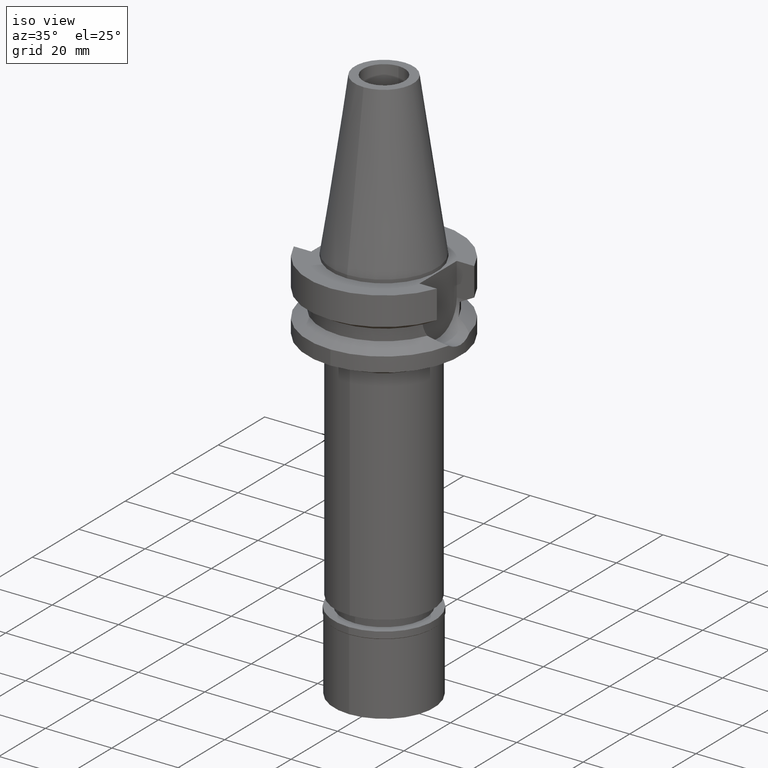
[diagram: clean part render]
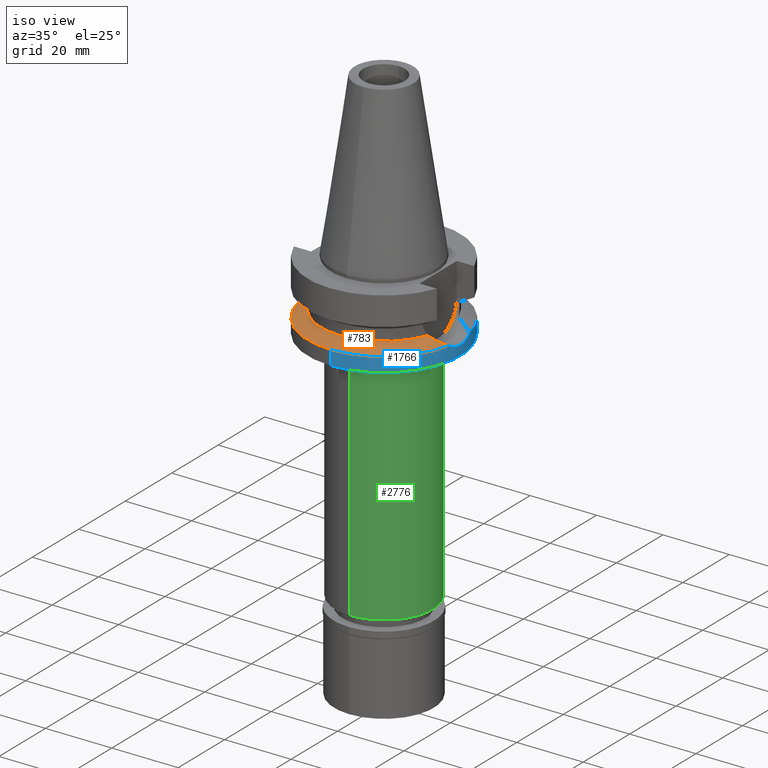
[diagram: same view with three faces highlighted in distinct colors, each labeled with its STEP entity id]
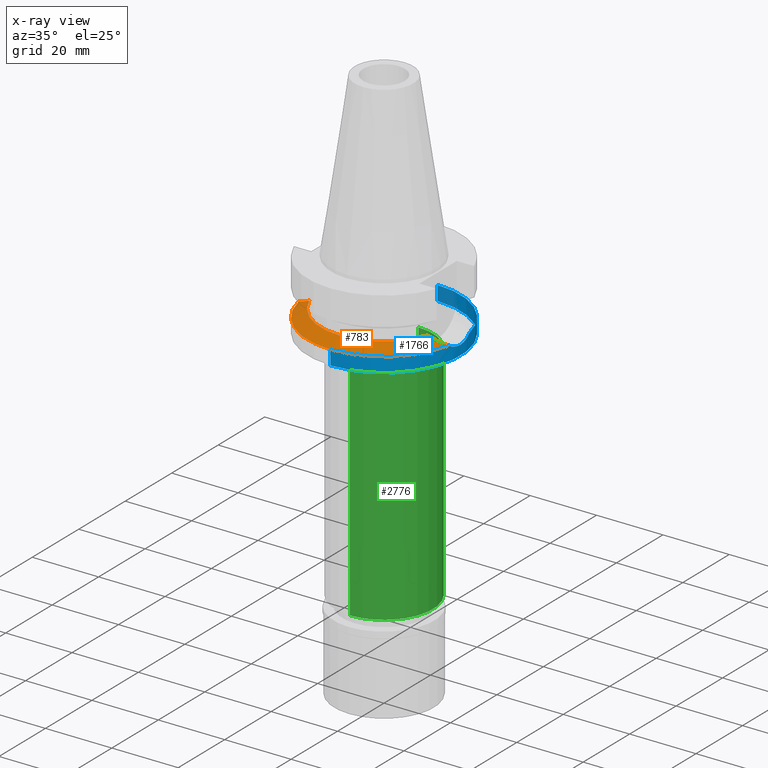
[diagram: x-ray of the same camera — body ghosted, the three highlighted faces saturated]
A machine part, iso view with three faces highlighted in distinct colors.
The next image is the same camera in x-ray (body ghosted, the three faces saturated) — at least one of them is partly hidden behind the body in this view.
Their STEP definitions:

[orange] entity #783 — the highlighted conical surface has half-angle 60 deg.
#8 = CARTESIAN_POINT ( 'NONE',  ( 17.75736593456000278, -6.758398853743999624, -15.32339055352999857 ) ) ;
#158 = CARTESIAN_POINT ( 'NONE',  ( 0.0000000000000000000, 1.022848384030000006E-14, -15.32339055352999857 ) ) ;
#184 = AXIS2_PLACEMENT_3D ( 'NONE', #1112, #1359, #433 ) ;
#203 = DIRECTION ( 'NONE',  ( 0.0000000000000000000, 0.0000000000000000000, 1.000000000000000000 ) ) ;
#227 = CARTESIAN_POINT ( 'NONE',  ( 22.55786346208000026, -4.488072640470000430, -17.63279163029000074 ) ) ;
#250 = DIRECTION ( 'NONE',  ( 0.9807766722643714852, -0.1951335930638943839, 0.0000000000000000000 ) ) ;
#285 = CARTESIAN_POINT ( 'NONE',  ( 0.0000000000000000000, 1.022848384030000006E-14, -17.63279163029000074 ) ) ;
#329 = ORIENTED_EDGE ( 'NONE', *, *, #1363, .F. ) ;
#402 = FACE_OUTER_BOUND ( 'NONE', #2091, .T. ) ;
#422 = CARTESIAN_POINT ( 'NONE',  ( 22.55786346208000026, -4.488072640470000430, -17.63279163029000074 ) ) ;
#424 = AXIS2_PLACEMENT_3D ( 'NONE', #158, #203, #1562 ) ;
#433 = DIRECTION ( 'NONE',  ( 0.0000000000000000000, -1.000000000000000000, 0.0000000000000000000 ) ) ;
#440 = EDGE_CURVE ( 'NONE', #1709, #2554, #2484, .T. ) ;
#581 = ORIENTED_EDGE ( 'NONE', *, *, #440, .F. ) ;
#590 = VERTEX_POINT ( 'NONE', #2569 ) ;
#623 = CARTESIAN_POINT ( 'NONE',  ( -22.55786346208000026, -4.488072640470000430, -17.63279163029000074 ) ) ;
#654 = AXIS2_PLACEMENT_3D ( 'NONE', #2665, #2491, #2245 ) ;
#661 = CONICAL_SURFACE ( 'NONE', #184, 21.00000000000000000, 1.047197551196400456 ) ;
#667 = CARTESIAN_POINT ( 'NONE',  ( -17.75736593456000278, -6.758398853743999624, -15.32339055352999857 ) ) ;
#687 = CARTESIAN_POINT ( 'NONE',  ( 19.88838796747590720, -5.976666637444247421, -16.34317465394291347 ) ) ;
#776 = EDGE_CURVE ( 'NONE', #2554, #590, #2597, .T. ) ;
#783 = ADVANCED_FACE ( 'NONE', ( #402 ), #661, .T. ) ;
#1079 = CARTESIAN_POINT ( 'NONE',  ( -19.77328210354985316, -6.137069160733610751, -16.28355951938011970 ) ) ;
#1081 = AXIS2_PLACEMENT_3D ( 'NONE', #285, #2128, #250 ) ;
#1112 = CARTESIAN_POINT ( 'NONE',  ( 0.0000000000000000000, 1.022848384030000006E-14, -16.47809109191000232 ) ) ;
#1117 = CARTESIAN_POINT ( 'NONE',  ( 18.71034618666826788, -6.447024932737199343, -15.77811711004892992 ) ) ;
#1120 = ORIENTED_EDGE ( 'NONE', *, *, #1456, .F. ) ;
#1359 = DIRECTION ( 'NONE',  ( 0.0000000000000000000, 0.0000000000000000000, -1.000000000000000000 ) ) ;
#1363 = EDGE_CURVE ( 'NONE', #1532, #1430, #2769, .T. ) ;
#1366 = CARTESIAN_POINT ( 'NONE',  ( 20.33559664281873225, -5.774885980035437960, -16.55833822866758354 ) ) ;
#1430 = VERTEX_POINT ( 'NONE', #1544 ) ;
#1456 = EDGE_CURVE ( 'NONE', #1430, #1709, #2634, .T. ) ;
#1469 = EDGE_CURVE ( 'NONE', #590, #1532, #2340, .T. ) ;
#1532 = VERTEX_POINT ( 'NONE', #227 ) ;
#1544 = CARTESIAN_POINT ( 'NONE',  ( 0.0000000000000000000, -23.00000000000000000, -17.63279163029000074 ) ) ;
#1562 = DIRECTION ( 'NONE',  ( 0.0000000000000000000, -1.000000000000000000, 0.0000000000000000000 ) ) ;
#1603 = CARTESIAN_POINT ( 'NONE',  ( 18.24676396947669232, -6.607560472926488515, -15.55648794731250106 ) ) ;
#1709 = VERTEX_POINT ( 'NONE', #1918 ) ;
#1764 = ORIENTED_EDGE ( 'NONE', *, *, #776, .F. ) ;
#1815 = CARTESIAN_POINT ( 'NONE',  ( 21.93955586547352254, -4.934510743384564968, -17.33296982733608260 ) ) ;
#1829 = CARTESIAN_POINT ( 'NONE',  ( 20.04044920271718055, -5.910146353153317378, -16.41627809615928868 ) ) ;
#1918 = CARTESIAN_POINT ( 'NONE',  ( -22.55786346208000026, -4.488072640470000430, -17.63279163029000074 ) ) ;
#2011 = CARTESIAN_POINT ( 'NONE',  ( 21.21492282189977985, -5.360271577186511927, -16.98189555827876873 ) ) ;
#2038 = CARTESIAN_POINT ( 'NONE',  ( 20.28692642516475431, -5.797553946567653327, -16.53490232736275800 ) ) ;
#2091 = EDGE_LOOP ( 'NONE', ( #1120, #329, #2154, #1764, #581 ) ) ;
#2128 = DIRECTION ( 'NONE',  ( 0.0000000000000000000, 0.0000000000000000000, -1.000000000000000000 ) ) ;
#2154 = ORIENTED_EDGE ( 'NONE', *, *, #1469, .F. ) ;
#2227 = CARTESIAN_POINT ( 'NONE',  ( 20.21361856956981029, -5.831484442647619559, -16.49960865650004038 ) ) ;
#2245 = DIRECTION ( 'NONE',  ( 0.0000000000000000000, -1.000000000000000000, 0.0000000000000000000 ) ) ;
#2340 = B_SPLINE_CURVE_WITH_KNOTS ( 'NONE', 3,
 ( #8, #1603, #1117, #2465, #2913, #687, #1829, #2227, #2038, #1366, #2451, #2011, #1815, #422 ),
 .UNSPECIFIED., .F., .F.,
 ( 4, 2, 2, 1, 1, 2, 2, 4 ),
 ( 0.0000000000000000000, 0.2500000000000045519, 0.3750000000000067724, 0.4375000000000083267, 0.4687500000000082157, 0.4843750000000082712, 0.5000000000000083267, 1.000000000000000000 ),
 .UNSPECIFIED. ) ;
#2447 = CARTESIAN_POINT ( 'NONE',  ( -21.37344794605652254, -5.343258989377623003, -17.05846002347406198 ) ) ;
#2451 = CARTESIAN_POINT ( 'NONE',  ( 20.35799687852934170, -5.764393097558390799, -16.56912614541773721 ) ) ;
#2465 = CARTESIAN_POINT ( 'NONE',  ( 19.36699578586794956, -6.194531271661527505, -16.09279774561746024 ) ) ;
#2484 = B_SPLINE_CURVE_WITH_KNOTS ( 'NONE', 3,
 ( #623, #2447, #1079, #2877 ),
 .UNSPECIFIED., .F., .F.,
 ( 4, 4 ),
 ( 0.0000000000000000000, 1.000000000000000000 ),
 .UNSPECIFIED. ) ;
#2491 = DIRECTION ( 'NONE',  ( 0.0000000000000000000, 0.0000000000000000000, -1.000000000000000000 ) ) ;
#2554 = VERTEX_POINT ( 'NONE', #667 ) ;
#2569 = CARTESIAN_POINT ( 'NONE',  ( 17.75736593456000278, -6.758398853743999624, -15.32339055352999857 ) ) ;
#2597 = CIRCLE ( 'NONE', #424, 19.00000000000000000 ) ;
#2634 = CIRCLE ( 'NONE', #654, 23.00000000000000000 ) ;
#2665 = CARTESIAN_POINT ( 'NONE',  ( 0.0000000000000000000, 1.022848384030000006E-14, -17.63279163029000074 ) ) ;
#2769 = CIRCLE ( 'NONE', #1081, 23.00000000000001066 ) ;
#2877 = CARTESIAN_POINT ( 'NONE',  ( -17.75736593456000278, -6.758398853743999624, -15.32339055352999857 ) ) ;
#2913 = CARTESIAN_POINT ( 'NONE',  ( 19.57942503116990807, -6.108417197979031599, -16.19473517994186551 ) ) ;

[blue] entity #1766 — the highlighted cylindrical surface (partial cylindrical patch) has radius 23 mm, axis along (0, 0, -1).
#73 = VECTOR ( 'NONE', #2754, 1000.000000000000000 ) ;
#116 = CARTESIAN_POINT ( 'NONE',  ( 22.89869250011097179, 2.155718604213055833, -18.70627604973245894 ) ) ;
#159 = CARTESIAN_POINT ( 'NONE',  ( 22.86636748228442784, -2.474914257455382405, -18.61034404076976401 ) ) ;
#172 = CARTESIAN_POINT ( 'NONE',  ( 22.55786346208000026, 4.488072640470000430, -17.63279163029000074 ) ) ;
#204 = VERTEX_POINT ( 'NONE', #1400 ) ;
#227 = CARTESIAN_POINT ( 'NONE',  ( 22.55786346208000026, -4.488072640470000430, -17.63279163029000074 ) ) ;
#250 = DIRECTION ( 'NONE',  ( 0.9807766722643714852, -0.1951335930638943839, 0.0000000000000000000 ) ) ;
#279 = AXIS2_PLACEMENT_3D ( 'NONE', #2095, #1870, #1441 ) ;
#285 = CARTESIAN_POINT ( 'NONE',  ( 0.0000000000000000000, 1.022848384030000006E-14, -17.63279163029000074 ) ) ;
#316 = ORIENTED_EDGE ( 'NONE', *, *, #1143, .F. ) ;
#371 = CARTESIAN_POINT ( 'NONE',  ( 23.00000044604999871, -0.7639198402709733715, -19.00000000000000355 ) ) ;
#381 = CARTESIAN_POINT ( 'NONE',  ( 22.70467258275669309, 3.750183491967929772, -18.12834802083744989 ) ) ;
#387 = EDGE_CURVE ( 'NONE', #1532, #466, #747, .T. ) ;
#403 = VERTEX_POINT ( 'NONE', #172 ) ;
#416 = CARTESIAN_POINT ( 'NONE',  ( 0.0000000000000000000, 23.00000000000000000, -17.63279163029000074 ) ) ;
#441 = CARTESIAN_POINT ( 'NONE',  ( 0.0000000000000000000, -23.00000000000000000, -22.00000000000000000 ) ) ;
#466 = VERTEX_POINT ( 'NONE', #921 ) ;
#553 = CARTESIAN_POINT ( 'NONE',  ( 22.88447367259623277, 2.301039541829223101, -18.66413484251108557 ) ) ;
#570 = CARTESIAN_POINT ( 'NONE',  ( 22.88310825622225408, 2.314576423008080308, -18.66008170511432240 ) ) ;
#595 = CARTESIAN_POINT ( 'NONE',  ( 22.88689308146437540, 2.276835504116469622, -18.67131332279036471 ) ) ;
#600 = CARTESIAN_POINT ( 'NONE',  ( 22.77604614579763975, -3.203243446311297760, -18.33795012630933385 ) ) ;
#606 = VECTOR ( 'NONE', #2448, 1000.000000000000000 ) ;
#616 = CARTESIAN_POINT ( 'NONE',  ( 22.81272658247721452, 3.007302590028213984, -18.45107973187498018 ) ) ;
#648 = CARTESIAN_POINT ( 'NONE',  ( 22.88082950798349202, -2.337004959226496315, -18.65331534968794358 ) ) ;
#741 = EDGE_CURVE ( 'NONE', #204, #403, #2233, .T. ) ;
#747 = B_SPLINE_CURVE_WITH_KNOTS ( 'NONE', 3,
 ( #1914, #2211, #2843, #600, #1522, #1975, #1301, #159, #1789, #2672, #2019, #648, #2414, #371, #2660 ),
 .UNSPECIFIED., .F., .F.,
 ( 4, 2, 2, 1, 1, 1, 2, 2, 4 ),
 ( 0.0000000000000000000, 0.2500000000000036082, 0.3750000000000052180, 0.4375000000000058287, 0.4687500000000066058, 0.4843750000000067724, 0.4921875000000066058, 0.5000000000000064393, 1.000000000000000000 ),
 .UNSPECIFIED. ) ;
#773 = CARTESIAN_POINT ( 'NONE',  ( 0.0000000000000000000, 1.914367876426999810E-14, 56.32000000000000028 ) ) ;
#815 = LINE ( 'NONE', #1725, #73 ) ;
#847 = AXIS2_PLACEMENT_3D ( 'NONE', #1763, #2045, #906 ) ;
#906 = DIRECTION ( 'NONE',  ( 0.0000000000000000000, 1.000000000000000000, 0.0000000000000000000 ) ) ;
#921 = CARTESIAN_POINT ( 'NONE',  ( 23.00000044605000227, 5.254056241686999469E-14, -19.00000145547000230 ) ) ;
#1081 = AXIS2_PLACEMENT_3D ( 'NONE', #285, #2128, #250 ) ;
#1143 = EDGE_CURVE ( 'NONE', #466, #403, #1318, .T. ) ;
#1233 = ORIENTED_EDGE ( 'NONE', *, *, #1354, .T. ) ;
#1254 = ORIENTED_EDGE ( 'NONE', *, *, #387, .F. ) ;
#1257 = DIRECTION ( 'NONE',  ( 0.0000000000000000000, -1.000000000000000000, 0.0000000000000000000 ) ) ;
#1261 = CARTESIAN_POINT ( 'NONE',  ( 22.94838639019631188, 1.548059420552095888, -18.85226265941276225 ) ) ;
#1267 = ORIENTED_EDGE ( 'NONE', *, *, #1895, .F. ) ;
#1276 = CARTESIAN_POINT ( 'NONE',  ( 23.00000044605000227, 5.254056241686999469E-14, -19.00000145547000230 ) ) ;
#1301 = CARTESIAN_POINT ( 'NONE',  ( 22.84961707709253176, -2.626411473035168864, -18.56046355644068768 ) ) ;
#1318 = B_SPLINE_CURVE_WITH_KNOTS ( 'NONE', 3,
 ( #1276, #2852, #2424, #2822, #1261, #2867, #2172, #116, #1745, #595, #553, #570, #616, #381, #2600 ),
 .UNSPECIFIED., .F., .F.,
 ( 4, 2, 2, 1, 1, 1, 2, 2, 4 ),
 ( 0.0000000000000000000, 0.2499999999999911182, 0.3749999999999863443, 0.4374999999999839573, 0.4687499999999828471, 0.4843749999999822919, 0.4921874999999818479, 0.4999999999999814038, 1.000000000000000000 ),
 .UNSPECIFIED. ) ;
#1325 = ORIENTED_EDGE ( 'NONE', *, *, #1363, .T. ) ;
#1330 = EDGE_CURVE ( 'NONE', #1430, #1453, #815, .T. ) ;
#1354 = EDGE_CURVE ( 'NONE', #1453, #1888, #2184, .T. ) ;
#1363 = EDGE_CURVE ( 'NONE', #1532, #1430, #2769, .T. ) ;
#1364 = CARTESIAN_POINT ( 'NONE',  ( 0.0000000000000000000, 23.00000000000000000, -22.00000000000000000 ) ) ;
#1400 = CARTESIAN_POINT ( 'NONE',  ( 0.0000000000000000000, 23.00000000000000000, -17.63279163029000074 ) ) ;
#1428 = AXIS2_PLACEMENT_3D ( 'NONE', #773, #1498, #1257 ) ;
#1430 = VERTEX_POINT ( 'NONE', #1544 ) ;
#1441 = DIRECTION ( 'NONE',  ( 0.0000000000000000000, -1.000000000000000000, 0.0000000000000000000 ) ) ;
#1453 = VERTEX_POINT ( 'NONE', #441 ) ;
#1498 = DIRECTION ( 'NONE',  ( 0.0000000000000000000, 0.0000000000000000000, -1.000000000000000000 ) ) ;
#1522 = CARTESIAN_POINT ( 'NONE',  ( 22.80063993349638096, -3.023486799320353580, -18.41302963760912448 ) ) ;
#1532 = VERTEX_POINT ( 'NONE', #227 ) ;
#1544 = CARTESIAN_POINT ( 'NONE',  ( 0.0000000000000000000, -23.00000000000000000, -17.63279163029000074 ) ) ;
#1705 = FACE_OUTER_BOUND ( 'NONE', #1768, .T. ) ;
#1725 = CARTESIAN_POINT ( 'NONE',  ( 0.0000000000000000000, -23.00000000000000000, -17.63279163029000074 ) ) ;
#1745 = CARTESIAN_POINT ( 'NONE',  ( 22.89049339228006019, 2.240519772402555176, -18.68199100502956611 ) ) ;
#1763 = CARTESIAN_POINT ( 'NONE',  ( 0.0000000000000000000, 1.022848384030000006E-14, -17.63279163029000074 ) ) ;
#1766 = ADVANCED_FACE ( 'NONE', ( #1705 ), #1946, .T. ) ;
#1768 = EDGE_LOOP ( 'NONE', ( #1325, #2247, #1233, #1267, #2151, #316, #1254 ) ) ;
#1789 = CARTESIAN_POINT ( 'NONE',  ( 22.87434525495998727, -2.399721912326016060, -18.63405589535602402 ) ) ;
#1870 = DIRECTION ( 'NONE',  ( 0.0000000000000000000, 0.0000000000000000000, 1.000000000000000000 ) ) ;
#1888 = VERTEX_POINT ( 'NONE', #1364 ) ;
#1895 = EDGE_CURVE ( 'NONE', #204, #1888, #2007, .T. ) ;
#1914 = CARTESIAN_POINT ( 'NONE',  ( 22.55786346208000026, -4.488072640470000430, -17.63279163029000074 ) ) ;
#1946 = CYLINDRICAL_SURFACE ( 'NONE', #1428, 23.00000000000000000 ) ;
#1975 = CARTESIAN_POINT ( 'NONE',  ( 22.83389697005820196, -2.758069658239559629, -18.51336550152592508 ) ) ;
#2007 = LINE ( 'NONE', #416, #606 ) ;
#2019 = CARTESIAN_POINT ( 'NONE',  ( 22.87988279952239168, -2.346244596099132718, -18.65050395887459800 ) ) ;
#2045 = DIRECTION ( 'NONE',  ( 0.0000000000000000000, 0.0000000000000000000, -1.000000000000000000 ) ) ;
#2095 = CARTESIAN_POINT ( 'NONE',  ( 0.0000000000000000000, 1.914367876426999810E-14, -22.00000000000000000 ) ) ;
#2128 = DIRECTION ( 'NONE',  ( 0.0000000000000000000, 0.0000000000000000000, -1.000000000000000000 ) ) ;
#2151 = ORIENTED_EDGE ( 'NONE', *, *, #741, .T. ) ;
#2172 = CARTESIAN_POINT ( 'NONE',  ( 22.91428424615011750, 1.985884398308523036, -18.75233391785344850 ) ) ;
#2184 = CIRCLE ( 'NONE', #279, 23.00000000000000000 ) ;
#2211 = CARTESIAN_POINT ( 'NONE',  ( 22.63127533738613195, -4.119091299845491605, -17.88059451736343775 ) ) ;
#2233 = CIRCLE ( 'NONE', #847, 23.00000000000000000 ) ;
#2247 = ORIENTED_EDGE ( 'NONE', *, *, #1330, .T. ) ;
#2414 = CARTESIAN_POINT ( 'NONE',  ( 22.96068632215177274, -1.550941513677163819, -18.89044221460695283 ) ) ;
#2424 = CARTESIAN_POINT ( 'NONE',  ( 22.99016919731596786, 0.7696193647269354843, -18.97276422500866389 ) ) ;
#2448 = DIRECTION ( 'NONE',  ( 0.0000000000000000000, -2.603192430893000129E-14, -1.000000000000000000 ) ) ;
#2600 = CARTESIAN_POINT ( 'NONE',  ( 22.55786346208000026, 4.488072640470000430, -17.63279163029000074 ) ) ;
#2660 = CARTESIAN_POINT ( 'NONE',  ( 23.00000044605000227, 5.254056241686999469E-14, -19.00000145547000230 ) ) ;
#2672 = CARTESIAN_POINT ( 'NONE',  ( 22.87767913683801524, -2.367618998491276994, -18.64395900712701959 ) ) ;
#2754 = DIRECTION ( 'NONE',  ( 0.0000000000000000000, 2.277793377031000010E-14, -1.000000000000000000 ) ) ;
#2769 = CIRCLE ( 'NONE', #1081, 23.00000000000001066 ) ;
#2822 = CARTESIAN_POINT ( 'NONE',  ( 22.96067545111385755, 1.353190260983862636, -18.88788486070053452 ) ) ;
#2843 = CARTESIAN_POINT ( 'NONE',  ( 22.69499749272881672, -3.748138648519764526, -18.08542285026992147 ) ) ;
#2852 = CARTESIAN_POINT ( 'NONE',  ( 23.00000044605000582, 0.3819957946227836021, -19.00000000000000000 ) ) ;
#2867 = CARTESIAN_POINT ( 'NONE',  ( 22.92626608054472470, 1.840003316588117332, -18.78752662336288637 ) ) ;

[green] entity #2776 — the highlighted cylindrical surface (partial cylindrical patch) has radius 14.75 mm, axis along (0, 0, -1).
#101 = FACE_OUTER_BOUND ( 'NONE', #1010, .T. ) ;
#207 = CARTESIAN_POINT ( 'NONE',  ( 0.0000000000000000000, 14.75000000000000000, -26.00000000000000000 ) ) ;
#233 = CIRCLE ( 'NONE', #325, 14.75000000000000000 ) ;
#320 = ORIENTED_EDGE ( 'NONE', *, *, #2026, .T. ) ;
#325 = AXIS2_PLACEMENT_3D ( 'NONE', #2331, #1479, #2756 ) ;
#513 = CYLINDRICAL_SURFACE ( 'NONE', #2473, 14.75000000000000000 ) ;
#561 = VECTOR ( 'NONE', #1581, 1000.000000000000000 ) ;
#653 = DIRECTION ( 'NONE',  ( 0.0000000000000000000, 0.0000000000000000000, -1.000000000000000000 ) ) ;
#728 = ORIENTED_EDGE ( 'NONE', *, *, #2239, .T. ) ;
#759 = VERTEX_POINT ( 'NONE', #2485 ) ;
#832 = CARTESIAN_POINT ( 'NONE',  ( 0.0000000000000000000, -14.75000000000000000, -26.00000000000000000 ) ) ;
#846 = AXIS2_PLACEMENT_3D ( 'NONE', #2401, #2433, #2874 ) ;
#1010 = EDGE_LOOP ( 'NONE', ( #728, #1509, #320, #1101 ) ) ;
#1014 = DIRECTION ( 'NONE',  ( 0.0000000000000000000, 0.0000000000000000000, -1.000000000000000000 ) ) ;
#1032 = VECTOR ( 'NONE', #653, 1000.000000000000000 ) ;
#1101 = ORIENTED_EDGE ( 'NONE', *, *, #1949, .F. ) ;
#1187 = CARTESIAN_POINT ( 'NONE',  ( 0.0000000000000000000, 14.75000000000000000, -93.20000000000000284 ) ) ;
#1433 = CARTESIAN_POINT ( 'NONE',  ( 0.0000000000000000000, 1.914367876426999810E-14, 56.32000000000000028 ) ) ;
#1479 = DIRECTION ( 'NONE',  ( 0.0000000000000000000, 0.0000000000000000000, 1.000000000000000000 ) ) ;
#1509 = ORIENTED_EDGE ( 'NONE', *, *, #2420, .T. ) ;
#1581 = DIRECTION ( 'NONE',  ( 0.0000000000000000000, 0.0000000000000000000, -1.000000000000000000 ) ) ;
#1596 = CARTESIAN_POINT ( 'NONE',  ( 0.0000000000000000000, -14.75000000000000000, -26.00000000000000000 ) ) ;
#1627 = LINE ( 'NONE', #1596, #561 ) ;
#1726 = VERTEX_POINT ( 'NONE', #832 ) ;
#1949 = EDGE_CURVE ( 'NONE', #2201, #2707, #2675, .T. ) ;
#2026 = EDGE_CURVE ( 'NONE', #759, #2707, #233, .T. ) ;
#2201 = VERTEX_POINT ( 'NONE', #2842 ) ;
#2239 = EDGE_CURVE ( 'NONE', #2201, #1726, #2817, .T. ) ;
#2331 = CARTESIAN_POINT ( 'NONE',  ( 0.0000000000000000000, 1.914367876426999810E-14, -93.20000000000000284 ) ) ;
#2345 = DIRECTION ( 'NONE',  ( 0.0000000000000000000, -1.000000000000000000, 0.0000000000000000000 ) ) ;
#2401 = CARTESIAN_POINT ( 'NONE',  ( 0.0000000000000000000, 0.0000000000000000000, -26.00000000000000000 ) ) ;
#2420 = EDGE_CURVE ( 'NONE', #1726, #759, #1627, .T. ) ;
#2433 = DIRECTION ( 'NONE',  ( 0.0000000000000000000, 0.0000000000000000000, -1.000000000000000000 ) ) ;
#2473 = AXIS2_PLACEMENT_3D ( 'NONE', #1433, #1014, #2345 ) ;
#2485 = CARTESIAN_POINT ( 'NONE',  ( 0.0000000000000000000, -14.75000000000000000, -93.20000000000000284 ) ) ;
#2675 = LINE ( 'NONE', #207, #1032 ) ;
#2707 = VERTEX_POINT ( 'NONE', #1187 ) ;
#2756 = DIRECTION ( 'NONE',  ( 0.0000000000000000000, -1.000000000000000000, 0.0000000000000000000 ) ) ;
#2776 = ADVANCED_FACE ( 'NONE', ( #101 ), #513, .T. ) ;
#2817 = CIRCLE ( 'NONE', #846, 14.75000000000000000 ) ;
#2842 = CARTESIAN_POINT ( 'NONE',  ( 0.0000000000000000000, 14.75000000000000000, -26.00000000000000000 ) ) ;
#2874 = DIRECTION ( 'NONE',  ( 0.0000000000000000000, 1.000000000000000000, 0.0000000000000000000 ) ) ;